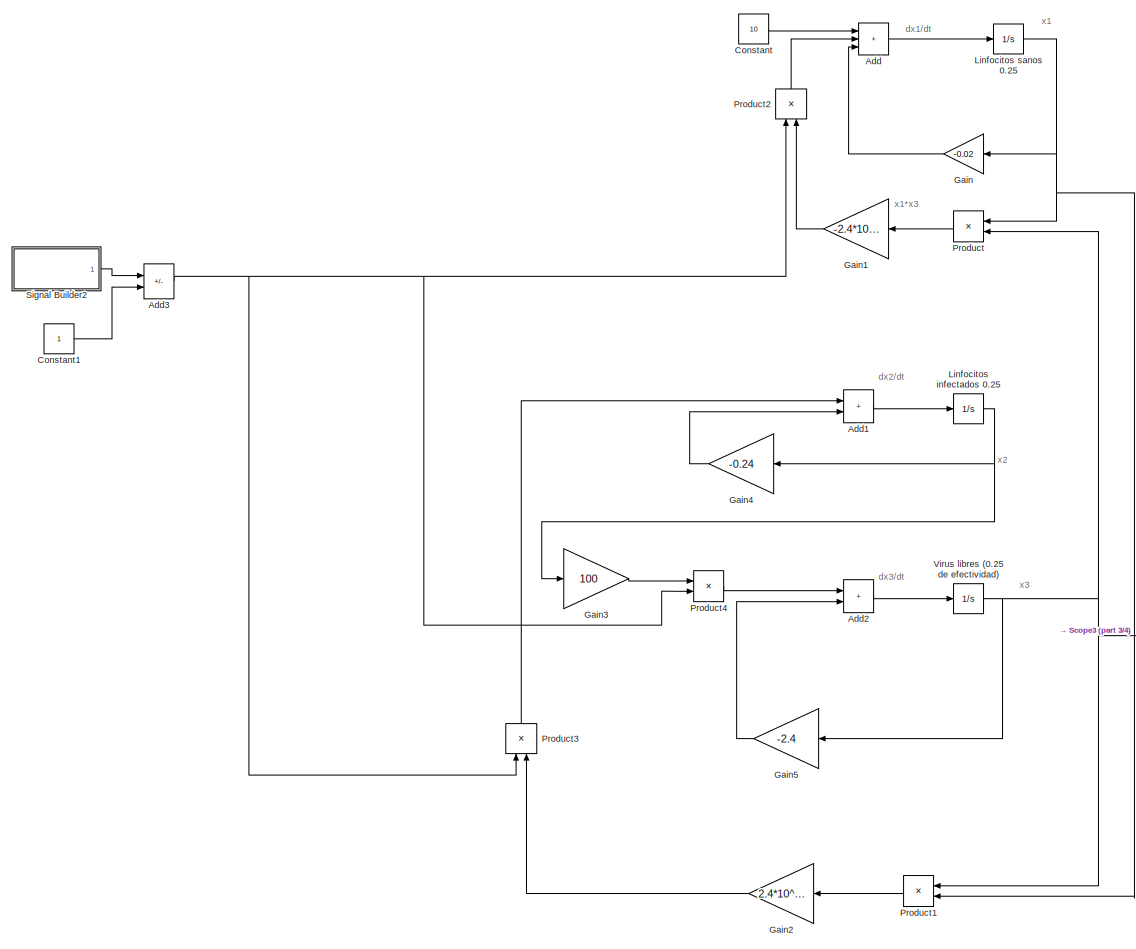
[diagram: root canvas - part 1/4, top left region]
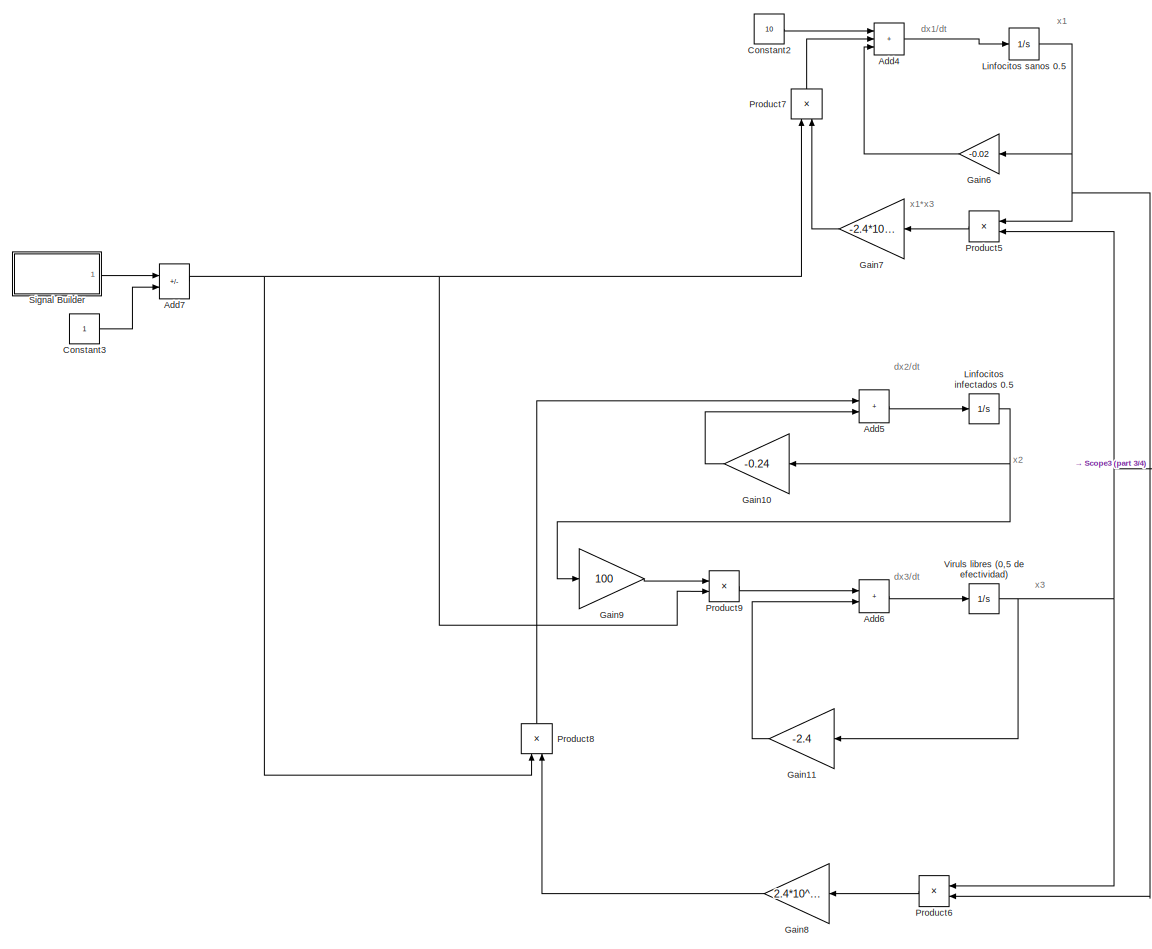
[diagram: root canvas - part 2/4, middle left region]
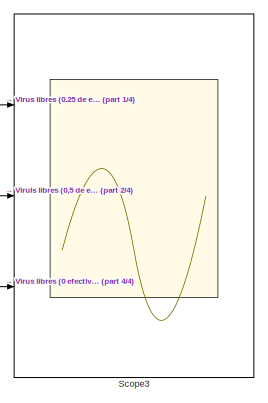
[diagram: root canvas - part 3/4, middle right region]
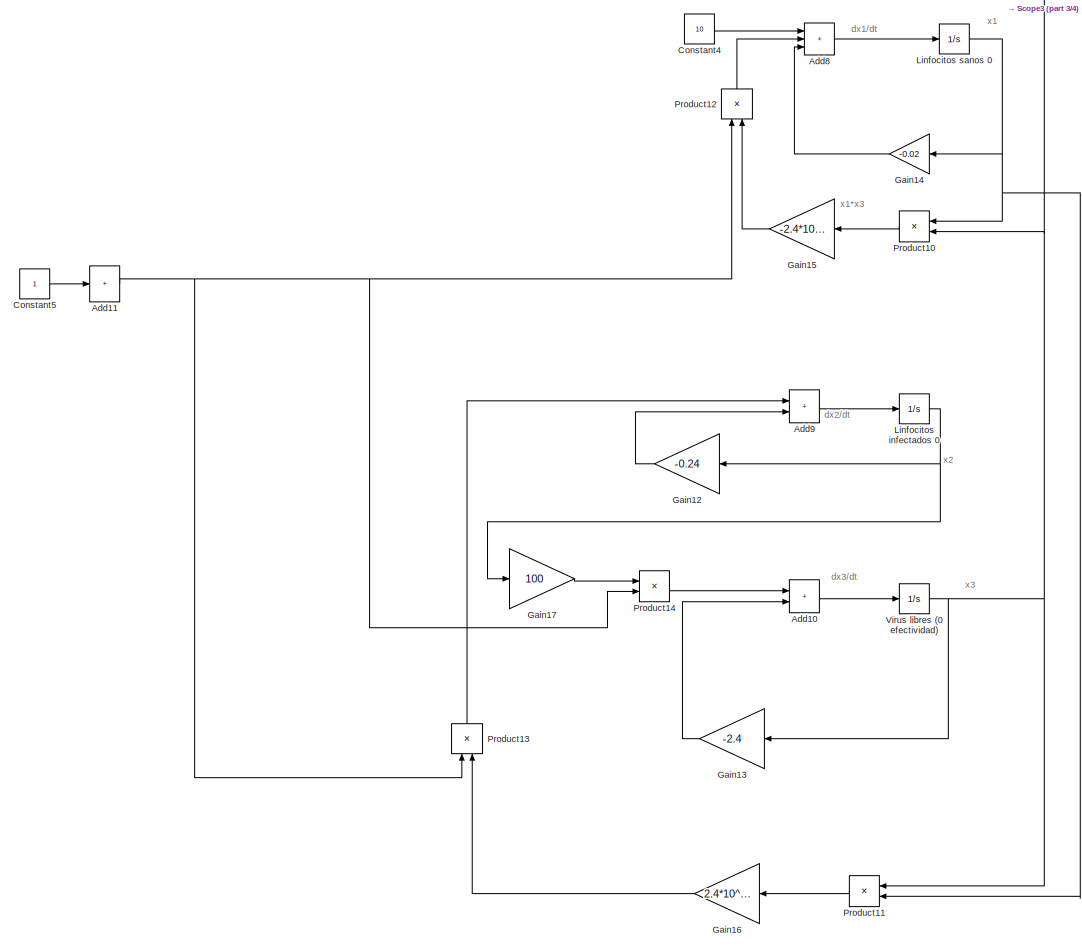
[diagram: root canvas - part 4/4, bottom left region]
MODEL slx_ac29332a96b3
KIND model
CONFIG AbsTol = auto
CONFIG EnableMultiTasking = off
CONFIG FixedStep = auto
CONFIG MaxStep = auto
CONFIG MinStep = auto
CONFIG RelTol = 1e-6
CONFIG SampleTimeConstraint = Unconstrained
CONFIG SolverName = VariableStepAuto
CONFIG StartTime = 0.0
CONFIG StopTime = 1000
BLOCK [Sum] Add
  IconShape = rectangular
  Inputs = +++
  Ports = [3, 1]
BLOCK [Sum] Add1
  IconShape = rectangular
  Ports = [2, 1]
BLOCK [Sum] Add10
  IconShape = rectangular
  Ports = [2, 1]
BLOCK [Sum] Add11
  IconShape = rectangular
  Inputs = +
  Ports = [1, 1]
BLOCK [Sum] Add2
  IconShape = rectangular
  Ports = [2, 1]
BLOCK [Sum] Add3
  IconShape = rectangular
  Inputs = -+
  Ports = [2, 1]
BLOCK [Sum] Add4
  IconShape = rectangular
  Inputs = +++
  Ports = [3, 1]
BLOCK [Sum] Add5
  IconShape = rectangular
  Ports = [2, 1]
BLOCK [Sum] Add6
  IconShape = rectangular
  Ports = [2, 1]
BLOCK [Sum] Add7
  IconShape = rectangular
  Inputs = -+
  Ports = [2, 1]
BLOCK [Sum] Add8
  IconShape = rectangular
  Inputs = +++
  Ports = [3, 1]
BLOCK [Sum] Add9
  IconShape = rectangular
  Ports = [2, 1]
BLOCK [Constant] Constant
  Value = 10
BLOCK [Constant] Constant1
BLOCK [Constant] Constant2
  Value = 10
BLOCK [Constant] Constant3
BLOCK [Constant] Constant4
  Value = 10
BLOCK [Constant] Constant5
BLOCK [Gain] Gain
  Gain = -0.02
BLOCK [Gain] Gain1
  Gain = -2.4*10^-5
BLOCK [Gain] Gain10
  Gain = -0.24
BLOCK [Gain] Gain11
  Gain = -2.4
BLOCK [Gain] Gain12
  Gain = -0.24
BLOCK [Gain] Gain13
  Gain = -2.4
BLOCK [Gain] Gain14
  Gain = -0.02
BLOCK [Gain] Gain15
  Gain = -2.4*10^-5
BLOCK [Gain] Gain16
  Gain = 2.4*10^-5
BLOCK [Gain] Gain17
  Gain = 100
BLOCK [Gain] Gain2
  Gain = 2.4*10^-5
BLOCK [Gain] Gain3
  Gain = 100
BLOCK [Gain] Gain4
  Gain = -0.24
BLOCK [Gain] Gain5
  Gain = -2.4
BLOCK [Gain] Gain6
  Gain = -0.02
BLOCK [Gain] Gain7
  Gain = -2.4*10^-5
BLOCK [Gain] Gain8
  Gain = 2.4*10^-5
BLOCK [Gain] Gain9
  Gain = 100
BLOCK [Integrator] Linfocitos infectados 0
  Ports = [1, 1]
BLOCK [Integrator] Linfocitos infectados 0.25
  Ports = [1, 1]
BLOCK [Integrator] Linfocitos infectados 0.5
  Ports = [1, 1]
BLOCK [Integrator] Linfocitos sanos 0
  InitialCondition = 600
  Ports = [1, 1]
BLOCK [Integrator] Linfocitos sanos 0.25
  InitialCondition = 600
  Ports = [1, 1]
BLOCK [Integrator] Linfocitos sanos 0.5
  InitialCondition = 600
  Ports = [1, 1]
BLOCK [Product] Product
  Ports = [2, 1]
BLOCK [Product] Product1
  Ports = [2, 1]
BLOCK [Product] Product10
  Ports = [2, 1]
BLOCK [Product] Product11
  Ports = [2, 1]
BLOCK [Product] Product12
  NameLocation = left
  Ports = [2, 1]
BLOCK [Product] Product13
  NameLocation = left
  Ports = [2, 1]
BLOCK [Product] Product14
  NameLocation = top
  Ports = [2, 1]
BLOCK [Product] Product2
  NameLocation = left
  Ports = [2, 1]
BLOCK [Product] Product3
  NameLocation = left
  Ports = [2, 1]
BLOCK [Product] Product4
  NameLocation = top
  Ports = [2, 1]
BLOCK [Product] Product5
  Ports = [2, 1]
BLOCK [Product] Product6
  Ports = [2, 1]
BLOCK [Product] Product7
  NameLocation = left
  Ports = [2, 1]
BLOCK [Product] Product8
  NameLocation = left
  Ports = [2, 1]
BLOCK [Product] Product9
  NameLocation = top
  Ports = [2, 1]
BLOCK [Scope] Scope3
  Floating = off
  NumInputPorts = 3
  Ports = [3]
  ScopeSpecificationString = Simulink.scopes.TimeScopeBlockCfg('CurrentConfiguration', extmgr.ConfigurationSet(extmgr.Configuration('Core','General UI',true),extmgr.Configuration('Core','Source UI',true),extmgr.Configuration('Sources','WiredSimulink',true,'DataLoggingVariableName','ScopeData1'),extmgr.Configuration('Visuals','Time Domain',true,'SerializedDisplays',{struct('MinYLimReal','-3324.8482','MaxYLimReal','13155.05042'...<+1872ch>
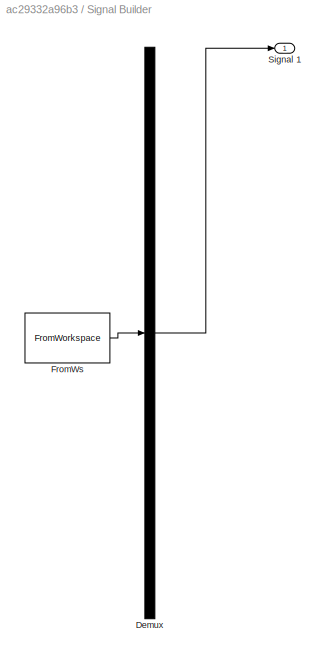
BLOCK [SubSystem] Signal Builder
  ClipboardFcn = sigbuilder_block('clipboard');
  CloseFcn = sigbuilder_block('close');
  ContinueFcn = sigbuilder_block('continue');
  CopyFcn = sigbuilder_block('copy');
  DeleteFcn = sigbuilder_block('delete');
  LoadFcn = sigbuilder_block('load');
  MaskHideContents = on
  ModelCloseFcn = sigbuilder_block('modelClose');
  NameChangeFcn = sigbuilder_block('namechange');
  OpenFcn = sigbuilder_block('open',[5.4 30 1141.2 522.6 ]);
  PauseFcn = sigbuilder_block('pause');
  Ports = [0, 1]
  PreSaveFcn = sigbuilder_block('preSave');
  RequestExecContextInheritance = off
  StartFcn = sigbuilder_block('start');
  StopFcn = sigbuilder_block('stop');
  Tag = STV Subsys
BLOCK [Demux] Signal Builder/Demux
  DisplayOption = none
  Outputs = 1
  Ports = [1, 1]
  Tag = STV Demux
BLOCK [FromWorkspace] Signal Builder/FromWs
  Tag = STV FromWs
  VariableName = tuvar
BLOCK [Outport] Signal Builder/Signal 1
  Tag = STV Outport
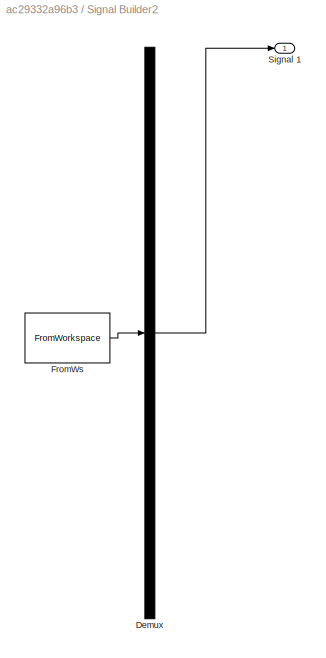
BLOCK [SubSystem] Signal Builder2
  ClipboardFcn = sigbuilder_block('clipboard');
  CloseFcn = sigbuilder_block('close');
  ContinueFcn = sigbuilder_block('continue');
  CopyFcn = sigbuilder_block('copy');
  DeleteFcn = sigbuilder_block('delete');
  LoadFcn = sigbuilder_block('load');
  MaskHideContents = on
  ModelCloseFcn = sigbuilder_block('modelClose');
  NameChangeFcn = sigbuilder_block('namechange');
  OpenFcn = sigbuilder_block('open',[5.4 30 1141.2 522.6 ]);
  PauseFcn = sigbuilder_block('pause');
  Ports = [0, 1]
  PreSaveFcn = sigbuilder_block('preSave');
  RequestExecContextInheritance = off
  StartFcn = sigbuilder_block('start');
  StopFcn = sigbuilder_block('stop');
  Tag = STV Subsys
BLOCK [Demux] Signal Builder2/Demux
  DisplayOption = none
  Outputs = 1
  Ports = [1, 1]
  Tag = STV Demux
BLOCK [FromWorkspace] Signal Builder2/FromWs
  Tag = STV FromWs
  VariableName = tuvar
BLOCK [Outport] Signal Builder2/Signal 1
  Tag = STV Outport
BLOCK [Integrator] Viruls libres (0,5 de efectividad)
  InitialCondition = 1
  Ports = [1, 1]
BLOCK [Integrator] Virus libres (0 efectividad)
  InitialCondition = 1
  Ports = [1, 1]
BLOCK [Integrator] Virus libres (0.25 de efectividad)
  InitialCondition = 1
  Ports = [1, 1]
ANNOTATION (root): dx1/dt
ANNOTATION (root): dx2/dt
ANNOTATION (root): dx3/dt
ANNOTATION (root): x1
ANNOTATION (root): x1*x3
ANNOTATION (root): x2
ANNOTATION (root): x3
LINE Add10:1 -> Virus libres (0 efectividad):1
NET Add11:1 -> Product12:1, Product13:1, Product14:2
LINE Add1:1 -> Linfocitos infectados 0.25:1
LINE Add2:1 -> Virus libres (0.25 de efectividad):1
NET Add3:1 -> Product2:1, Product3:1, Product4:2
LINE Add4:1 -> Linfocitos sanos 0.5:1
LINE Add5:1 -> Linfocitos infectados 0.5:1
LINE Add6:1 -> Viruls libres (0,5 de efectividad):1
NET Add7:1 -> Product7:1, Product8:1, Product9:2
LINE Add8:1 -> Linfocitos sanos 0:1
LINE Add9:1 -> Linfocitos infectados 0:1
LINE Add:1 -> Linfocitos sanos 0.25:1
LINE Constant1:1 -> Add3:2
LINE Constant2:1 -> Add4:1
LINE Constant3:1 -> Add7:2
LINE Constant4:1 -> Add8:1
LINE Constant5:1 -> Add11:1
LINE Constant:1 -> Add:1
LINE Gain10:1 -> Add5:2
LINE Gain11:1 -> Add6:2
LINE Gain12:1 -> Add9:2
LINE Gain13:1 -> Add10:2
LINE Gain14:1 -> Add8:3
LINE Gain15:1 -> Product12:2
LINE Gain16:1 -> Product13:2
LINE Gain17:1 -> Product14:1
LINE Gain1:1 -> Product2:2
LINE Gain2:1 -> Product3:2
LINE Gain3:1 -> Product4:1
LINE Gain4:1 -> Add1:2
LINE Gain5:1 -> Add2:2
LINE Gain6:1 -> Add4:3
LINE Gain7:1 -> Product7:2
LINE Gain8:1 -> Product8:2
LINE Gain9:1 -> Product9:1
LINE Gain:1 -> Add:3
NET Linfocitos infectados 0.25:1 -> Gain3:1, Gain4:1
NET Linfocitos infectados 0.5:1 -> Gain10:1, Gain9:1
NET Linfocitos infectados 0:1 -> Gain12:1, Gain17:1
NET Linfocitos sanos 0.25:1 -> Gain:1, Product1:2, Product:1
NET Linfocitos sanos 0.5:1 -> Gain6:1, Product5:1, Product6:2
NET Linfocitos sanos 0:1 -> Gain14:1, Product10:1, Product11:2
LINE Product10:1 -> Gain15:1
LINE Product11:1 -> Gain16:1
LINE Product12:1 -> Add8:2
LINE Product13:1 -> Add9:1
LINE Product14:1 -> Add10:1
LINE Product1:1 -> Gain2:1
LINE Product2:1 -> Add:2
LINE Product3:1 -> Add1:1
LINE Product4:1 -> Add2:1
LINE Product5:1 -> Gain7:1
LINE Product6:1 -> Gain8:1
LINE Product7:1 -> Add4:2
LINE Product8:1 -> Add5:1
LINE Product9:1 -> Add6:1
LINE Product:1 -> Gain1:1
LINE Signal Builder2:1 -> Add3:1
LINE Signal Builder:1 -> Add7:1
NET Viruls libres (0,5 de efectividad):1 -> Gain11:1, Product5:2, Product6:1, Scope3:2
NET Virus libres (0 efectividad):1 -> Gain13:1, Product10:2, Product11:1, Scope3:3
NET Virus libres (0.25 de efectividad):1 -> Gain5:1, Product1:1, Product:2, Scope3:1
note: NET lines group one-source signal fan-out (src -> all destinations, sorted); 1:1 wires keep LINE
